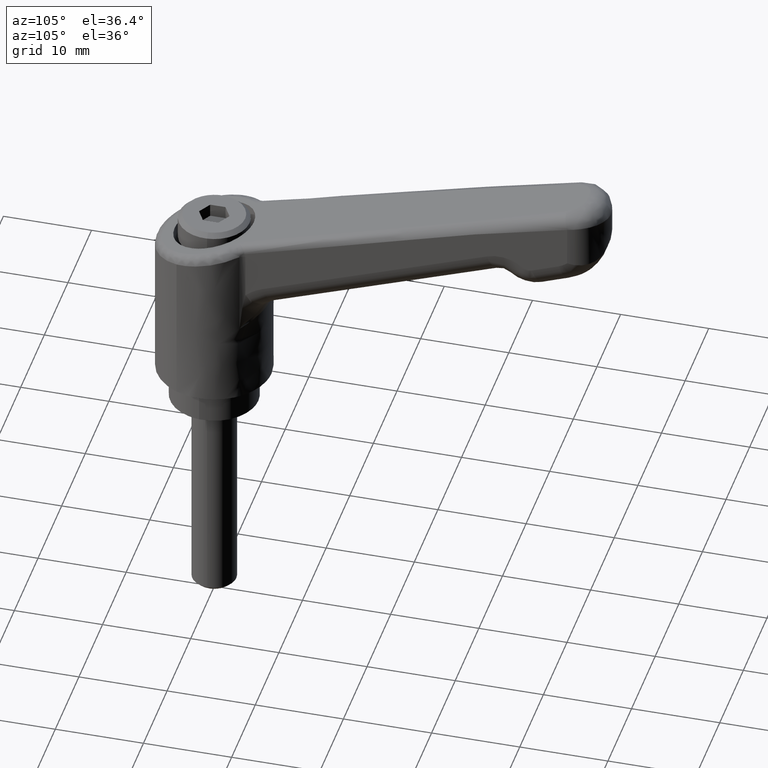
[diagram: clean part render]
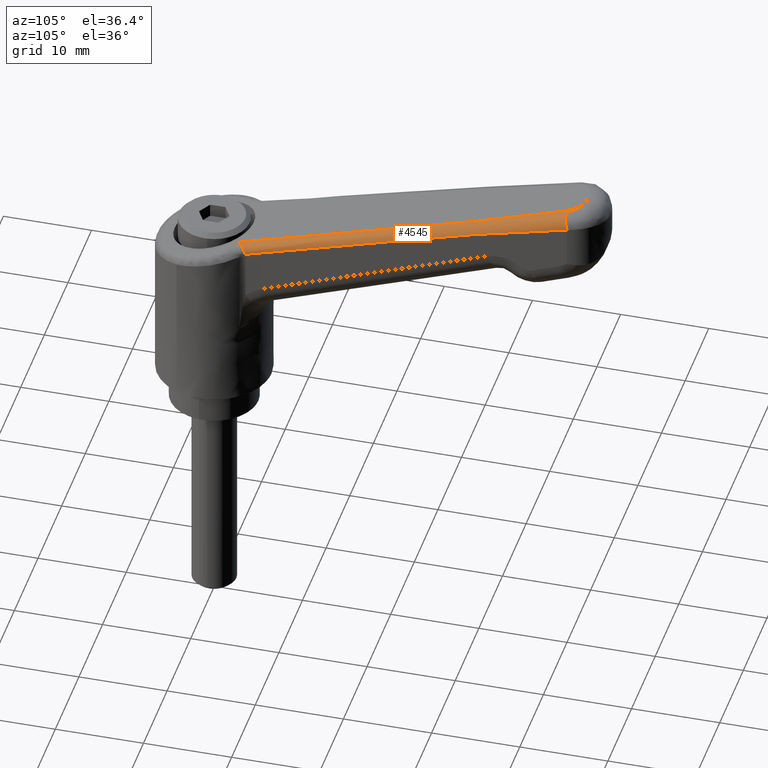
[diagram: same view with one face highlighted and labeled with its STEP entity id]
A machine part, auxiliary view. The second image highlights one B-rep face of the part: STEP entity #4545.
In plain terms, the highlighted face is a freeform B-spline surface patch.
Its self-contained STEP definition (entity closure, byte-faithful):
#3682=CARTESIAN_POINT('',(4.752992631289641,-4.743523573093560,23.264541861390850));
#3683=VERTEX_POINT('',#3682);
#3774=CARTESIAN_POINT('',(3.741556339639425,-3.758484852029455,24.024416670054251));
#3775=VERTEX_POINT('',#3774);
#3776=CARTESIAN_POINT('',(3.741556339639425,-3.758484852029455,24.024416670054251));
#3777=CARTESIAN_POINT('',(3.753072677698745,-3.772563308586387,24.027659134028681));
#3778=CARTESIAN_POINT('',(3.764843186281357,-3.786911902521084,24.030647846034981));
#3779=CARTESIAN_POINT('',(3.788214688201165,-3.815321462779839,24.035926967830338));
#3780=CARTESIAN_POINT('',(3.823353311913119,-3.857911999778691,24.042892065018219));
#3781=CARTESIAN_POINT('',(3.858746201241857,-3.900422768187096,24.046992798880940));
#3782=CARTESIAN_POINT('',(3.929910831784039,-3.985308388825134,24.051291753462529));
#3783=CARTESIAN_POINT('',(3.977852426871635,-4.041721492083482,24.048989812656689));
#3784=CARTESIAN_POINT('',(4.075077935297387,-4.153958068726304,24.032872738473412));
#3785=CARTESIAN_POINT('',(4.123287108066880,-4.208536212015907,24.019222886952502));
#3786=CARTESIAN_POINT('',(4.218870401938179,-4.313902167511122,23.980142884603708));
#3787=CARTESIAN_POINT('',(4.266417448406448,-4.364883353275505,23.954637364660421));
#3788=CARTESIAN_POINT('',(4.360392720227813,-4.461673160080639,23.890254203834520));
#3789=CARTESIAN_POINT('',(4.405528018126704,-4.506154008721189,23.852294155172469));
#3790=CARTESIAN_POINT('',(4.470467442116785,-4.566328647317353,23.786053853462519));
#3791=CARTESIAN_POINT('',(4.491650110596391,-4.585288675882886,23.762413418647849));
#3792=CARTESIAN_POINT('',(4.533041603099047,-4.620781254039125,23.711736943497371));
#3793=CARTESIAN_POINT('',(4.553300649916113,-4.637338303017352,23.684587566813811));
#3794=CARTESIAN_POINT('',(4.610755490235874,-4.681602287848692,23.600164056382660));
#3795=CARTESIAN_POINT('',(4.645287878428901,-4.704521960186202,23.539275025825400));
#3796=CARTESIAN_POINT('',(4.691084670746461,-4.728019384359413,23.440461805311980));
#3797=CARTESIAN_POINT('',(4.705405981011979,-4.734028844092451,23.406052599950410));
#3798=CARTESIAN_POINT('',(4.724765123687737,-4.739900386867568,23.353693834708150));
#3799=CARTESIAN_POINT('',(4.733942021046400,-4.742069600062044,23.327279404585418));
#3800=CARTESIAN_POINT('',(4.742361373545647,-4.743081769489404,23.300510605610501));
#3801=CARTESIAN_POINT('',(4.747804674643533,-4.743497481194193,23.282585400722908));
#3802=CARTESIAN_POINT('',(4.750484128238574,-4.743574958811943,23.273432328561761));
#3803=CARTESIAN_POINT('',(4.752992631289630,-4.743523573093560,23.264541861390899));
#3804=B_SPLINE_CURVE_WITH_KNOTS('',3,(#3776,#3777,#3778,#3779,#3780,#3781,#3782,#3783,#3784,#3785,#3786,#3787,#3788,#3789,#3790,#3791,#3792,#3793,#3794,#3795,#3796,#3797,#3798,#3799,#3800,#3801,#3802,#3803),.UNSPECIFIED.,.F.,.U.,(4,2,1,2,2,2,2,2,2,2,2,2,1,2,4),(0.0,0.031250000000000,0.062500000000000,0.125000000000000,0.250000000000002,0.375000000000004,0.500000000000005,0.625000000000007,0.687500000000006,0.750000000000006,0.875000000000006,0.937500000000006,0.968750000000005,0.984375000000003,1.0),.UNSPECIFIED.);
#3805=EDGE_CURVE('',#3775,#3683,#3804,.T.);
#4293=CARTESIAN_POINT('',(40.644689856570999,-2.499459725774400,34.414618865013750));
#4294=VERTEX_POINT('',#4293);
#4295=CARTESIAN_POINT('',(41.081942629000849,-3.999144946131885,32.970756681699797));
#4296=VERTEX_POINT('',#4295);
#4297=CARTESIAN_POINT('',(40.644689856570999,-2.499459725774400,34.414618865013750));
#4298=CARTESIAN_POINT('',(40.673320296627530,-4.007517600192524,34.422679862353704));
#4299=CARTESIAN_POINT('',(41.081942629000800,-3.999144946131865,32.970756681699797));
#4307=(BOUNDED_CURVE()B_SPLINE_CURVE(2,(#4297,#4298,#4299),.UNSPECIFIED.,.F.,.U.)CURVE()GEOMETRIC_REPRESENTATION_ITEM()QUASI_UNIFORM_CURVE()RATIONAL_B_SPLINE_CURVE((1.0,0.705141140201318,1.0))REPRESENTATION_ITEM(''));
#4308=EDGE_CURVE('',#4294,#4296,#4307,.T.);
#4477=CARTESIAN_POINT('',(3.520080277674295,-3.763022887056793,23.962059334894491));
#4478=CARTESIAN_POINT('',(3.539167237711984,-4.768394803335542,23.967433333121125));
#4479=CARTESIAN_POINT('',(3.811582125960843,-4.762813033961771,22.999484546018500));
#4480=CARTESIAN_POINT('',(11.797048048328950,-3.593428172513316,26.292467636368610));
#4481=CARTESIAN_POINT('',(11.816135008366624,-4.598800088792065,26.297841634595251));
#4482=CARTESIAN_POINT('',(12.088549896615501,-4.593218319418292,25.329892847492619));
#4483=CARTESIAN_POINT('',(20.074015818983600,-3.423833457969838,28.622875937842728));
#4484=CARTESIAN_POINT('',(20.093102779021251,-4.429205374248587,28.628249936069373));
#4485=CARTESIAN_POINT('',(20.365517667270151,-4.423623604874813,27.660301148966742));
#4486=CARTESIAN_POINT('',(28.350983589638250,-3.254238743426360,30.953284239316851));
#4487=CARTESIAN_POINT('',(28.370070549675898,-4.259610659705110,30.958658237543496));
#4488=CARTESIAN_POINT('',(28.642485437924801,-4.254028890331335,29.990709450440850));
#4489=CARTESIAN_POINT('',(30.401525214130199,-3.212223233507595,31.530621176785210));
#4490=CARTESIAN_POINT('',(30.420612174167911,-4.217595149786342,31.535995175011831));
#4491=CARTESIAN_POINT('',(30.693027062416750,-4.212013380412575,30.568046387909249));
#4492=CARTESIAN_POINT('',(32.450158142618363,-3.069670531960955,32.107420714430901));
#4493=CARTESIAN_POINT('',(32.471153798659820,-4.175579639867580,32.113332112480229));
#4494=CARTESIAN_POINT('',(32.770810175733551,-4.169439693556431,31.048588446667349));
#4495=CARTESIAN_POINT('',(34.498791071106552,-2.927117830414315,32.684220252076649));
#4496=CARTESIAN_POINT('',(34.521695423151748,-4.133564129948820,32.690669049948603));
#4497=CARTESIAN_POINT('',(34.848593289050349,-4.126866006700290,31.529130505425499));
#4498=CARTESIAN_POINT('',(36.547423999594699,-2.784565128867675,33.261019789722347));
#4499=CARTESIAN_POINT('',(36.572237047643689,-4.091548620030052,33.268005987417013));
#4500=CARTESIAN_POINT('',(36.926376402367197,-4.084292319844150,32.009672564183603));
#4501=CARTESIAN_POINT('',(38.594148232079100,-2.541475235693165,33.837281927545412));
#4502=CARTESIAN_POINT('',(38.622778672135617,-4.049533110111292,33.845342924885401));
#4503=CARTESIAN_POINT('',(39.031401004508901,-4.041160456050630,32.393419744231451));
#4504=CARTESIAN_POINT('',(40.644689856570999,-2.499459725774400,34.414618865013750));
#4505=CARTESIAN_POINT('',(40.673320296627544,-4.007517600192523,34.422679862353711));
#4506=CARTESIAN_POINT('',(41.081942629000800,-3.999144946131865,32.970756681699797));
#4514=(BOUNDED_SURFACE()B_SPLINE_SURFACE(2,3,((#4477,#4480,#4483,#4486,#4489,#4492,#4495,#4498,#4501,#4504),(#4478,#4481,#4484,#4487,#4490,#4493,#4496,#4499,#4502,#4505),(#4479,#4482,#4485,#4488,#4491,#4494,#4497,#4500,#4503,#4506)),.UNSPECIFIED.,.F.,.F.,.U.)B_SPLINE_SURFACE_WITH_KNOTS((3,3),(4,3,3,4),(0.0,2.495043805187786),(0.0,25.852385971506269,32.257073653745813,38.661761335985197),.UNSPECIFIED.)GEOMETRIC_REPRESENTATION_ITEM()RATIONAL_B_SPLINE_SURFACE(((1.0,1.0,1.0,1.0,1.0,1.0,1.0,1.0,1.0,1.0),(0.705141140201318,0.705141140201318,0.705141140201318,0.705141140201318,0.705141140201318,0.705141140201318,0.705141140201318,0.705141140201318,0.705141140201318,0.705141140201318),(1.0,1.0,1.0,1.0,1.0,1.0,1.0,1.0,1.0,1.0)))REPRESENTATION_ITEM('')SURFACE());
#4515=CARTESIAN_POINT('',(3.741556339639425,-3.758484852029455,24.024416670054251));
#4516=CARTESIAN_POINT('',(11.944698756317880,-3.590402815840754,26.334039193145220));
#4517=CARTESIAN_POINT('',(20.147841172978069,-3.422320779633557,28.643661716231030));
#4518=CARTESIAN_POINT('',(28.350983589638250,-3.254238743426360,30.953284239316851));
#4519=CARTESIAN_POINT('',(30.401525214130199,-3.212223233507595,31.530621176785210));
#4520=CARTESIAN_POINT('',(32.450158142618363,-3.069670531960955,32.107420714430901));
#4521=CARTESIAN_POINT('',(34.498791071106552,-2.927117830414315,32.684220252076649));
#4522=CARTESIAN_POINT('',(36.547423999594699,-2.784565128867675,33.261019789722347));
#4523=CARTESIAN_POINT('',(38.594148232079100,-2.541475235693165,33.837281927545412));
#4524=CARTESIAN_POINT('',(40.644689856570999,-2.499459725774400,34.414618865013750));
#4525=B_SPLINE_CURVE_WITH_KNOTS('',3,(#4515,#4516,#4517,#4518,#4519,#4520,#4521,#4522,#4523,#4524),.UNSPECIFIED.,.F.,.U.,(4,3,3,4),(0.666640225991438,0.888888888888889,0.944444444444445,1.0),.UNSPECIFIED.);
#4526=EDGE_CURVE('',#3775,#4294,#4525,.T.);
#4527=ORIENTED_EDGE('',*,*,#4526,.F.);
#4528=ORIENTED_EDGE('',*,*,#3805,.T.);
#4529=CARTESIAN_POINT('',(41.081942629000800,-3.999144946131865,32.970756681699797));
#4530=CARTESIAN_POINT('',(39.031401004508901,-4.041160456050630,32.393419744231451));
#4531=CARTESIAN_POINT('',(36.926376402367197,-4.084292319844150,32.009672564183603));
#4532=CARTESIAN_POINT('',(34.848593289050349,-4.126866006700290,31.529130505425499));
#4533=CARTESIAN_POINT('',(32.770810175733551,-4.169439693556431,31.048588446667349));
#4534=CARTESIAN_POINT('',(30.693027062416750,-4.212013380412575,30.568046387909249));
#4535=CARTESIAN_POINT('',(28.642485437924801,-4.254028890331335,29.990709450440850));
#4536=CARTESIAN_POINT('',(20.679321169046421,-4.417193784585410,27.748653587424180));
#4537=CARTESIAN_POINT('',(12.716156900168039,-4.580358678839486,25.506597724407520));
#4538=CARTESIAN_POINT('',(4.752992631289661,-4.743523573093562,23.264541861390850));
#4539=B_SPLINE_CURVE_WITH_KNOTS('',3,(#4529,#4530,#4531,#4532,#4533,#4534,#4535,#4536,#4537,#4538),.UNSPECIFIED.,.F.,.U.,(4,3,3,4),(0.673141981021412,0.728697536576967,0.784253092132523,1.000000000000000),.UNSPECIFIED.);
#4540=EDGE_CURVE('',#4296,#3683,#4539,.T.);
#4541=ORIENTED_EDGE('',*,*,#4540,.F.);
#4542=ORIENTED_EDGE('',*,*,#4308,.F.);
#4543=EDGE_LOOP('',(#4527,#4528,#4541,#4542));
#4544=FACE_OUTER_BOUND('',#4543,.T.);
#4545=ADVANCED_FACE('',(#4544),#4514,.T.);